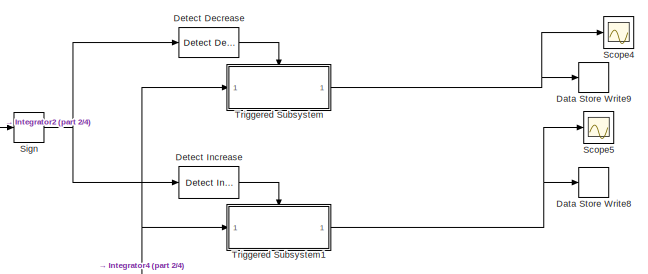
[diagram: root canvas - part 1/4, top left region]
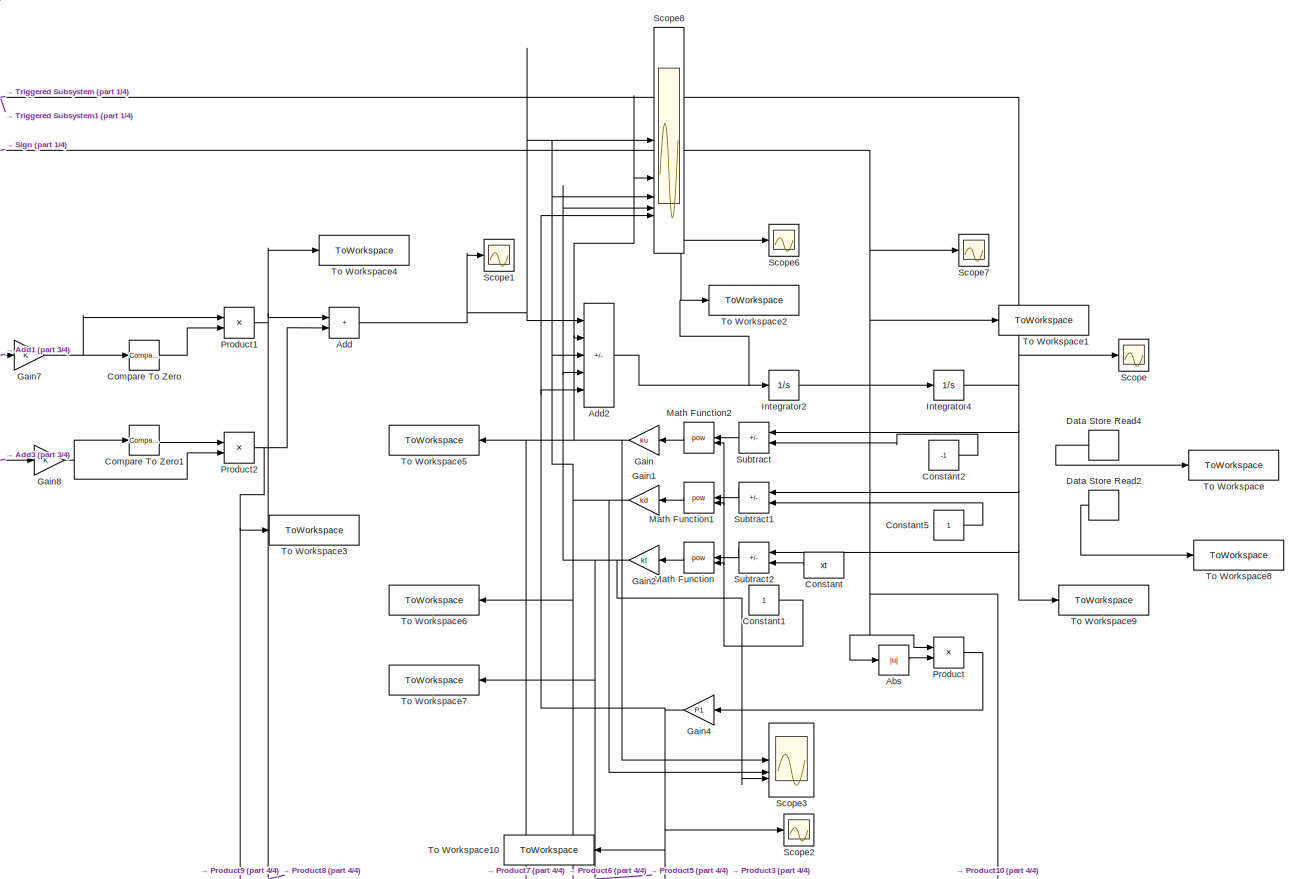
[diagram: root canvas - part 2/4, full width, middle band]
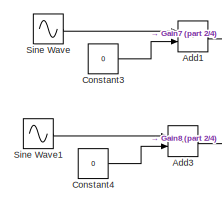
[diagram: root canvas - part 3/4, middle left region]
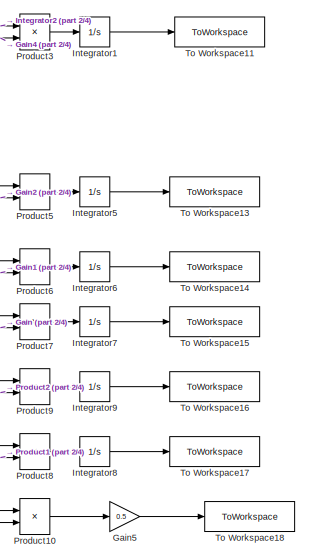
[diagram: root canvas - part 4/4, bottom right region]
MODEL slx_0458fc017199
KIND model
CONFIG AbsTol = auto
CONFIG EnableMultiTasking = off
CONFIG FixedStep = dt
CONFIG MaxStep = auto
CONFIG MinStep = auto
CONFIG RelTol = 1e-3
CONFIG SampleTimeConstraint = Unconstrained
CONFIG SolverName = FixedStepAuto
CONFIG StartTime = 0.0
CONFIG StopTime = 500
BLOCK [Abs] Abs
  SaturateOnIntegerOverflow = off
BLOCK [Sum] Add
  IconShape = rectangular
BLOCK [Sum] Add1
  IconShape = rectangular
BLOCK [Sum] Add2
  IconShape = rectangular
  Inputs = +----
BLOCK [Sum] Add3
  IconShape = rectangular
BLOCK [Reference] Compare To Zero  REF=simulink/Logic and Bit
Operations/Compare
To Zero
  SourceBlock = simulink/Logic and Bit\nOperations/Compare\nTo Zero
  SourceType = Compare To Zero
BLOCK [Reference] Compare To Zero1  REF=simulink/Logic and Bit
Operations/Compare
To Zero
  SourceBlock = simulink/Logic and Bit\nOperations/Compare\nTo Zero
  SourceType = Compare To Zero
BLOCK [Constant] Constant
  Value = xt
BLOCK [Constant] Constant1
BLOCK [Constant] Constant2
  Value = -1
BLOCK [Constant] Constant3
  Value = 0
BLOCK [Constant] Constant4
  Value = 0
BLOCK [Constant] Constant5
BLOCK [DataStoreRead] Data Store Read2
  Commented = on
  DataStoreName = xd
  IndexOptions = Index vector (dialog)
  Indices = 1
  OutputSizes = 1
BLOCK [DataStoreRead] Data Store Read4
  Commented = on
  DataStoreName = xu
  IndexOptions = Index vector (dialog)
  Indices = 1
  OutputSizes = 1
BLOCK [DataStoreWrite] Data Store Write8
  Commented = on
  DataStoreName = xu
  IndexOptions = Index vector (dialog)
  Indices = 1
  OutputSizes = 1
BLOCK [DataStoreWrite] Data Store Write9
  Commented = on
  DataStoreName = xd
  IndexOptions = Index vector (dialog)
  Indices = 1
  OutputSizes = 1
BLOCK [Reference] Detect Decrease  REF=simulink/Logic and Bit
Operations/Detect
Decrease
  Commented = on
  SourceBlock = simulink/Logic and Bit\nOperations/Detect\nDecrease
  SourceType = Detect Decrease
BLOCK [Reference] Detect Increase  REF=simulink/Logic and Bit
Operations/Detect
Increase
  Commented = on
  SourceBlock = simulink/Logic and Bit\nOperations/Detect\nIncrease
  SourceType = Detect Increase
BLOCK [Gain] Gain
  Gain = ku
BLOCK [Gain] Gain1
  Gain = kd
BLOCK [Gain] Gain2
  Gain = kt
BLOCK [Gain] Gain4
  Gain = P1
BLOCK [Gain] Gain5
  Gain = 0.5
BLOCK [Gain] Gain7
BLOCK [Gain] Gain8
BLOCK [Integrator] Integrator1
BLOCK [Integrator] Integrator2
  InitialCondition = 10
BLOCK [Integrator] Integrator4
  InitialCondition = 1
BLOCK [Integrator] Integrator5
BLOCK [Integrator] Integrator6
BLOCK [Integrator] Integrator7
BLOCK [Integrator] Integrator8
BLOCK [Integrator] Integrator9
BLOCK [Math] Math Function
  Operator = pow
BLOCK [Math] Math Function1
  Operator = pow
BLOCK [Math] Math Function2
  Operator = pow
BLOCK [Product] Product
BLOCK [Product] Product1
BLOCK [Product] Product10
BLOCK [Product] Product2
BLOCK [Product] Product3
BLOCK [Product] Product5
BLOCK [Product] Product6
BLOCK [Product] Product7
BLOCK [Product] Product8
BLOCK [Product] Product9
BLOCK [Scope] Scope
  Floating = off
  NumInputPorts = 1
  ScopeSpecificationString = Simulink.scopes.TimeScopeBlockCfg('CurrentConfiguration', extmgr.ConfigurationSet(extmgr.Configuration('Core','General UI',true),extmgr.Configuration('Core','Source UI',true),extmgr.Configuration('Sources','WiredSimulink',true,'DataLoggingVariableName','ScopeData1'),extmgr.Configuration('Visuals','Time Domain',true,'SerializedDisplays',{struct('MinYLimReal','-1.61059','MaxYLimReal','2.15662','YLab...<+1459ch>
BLOCK [Scope] Scope1
  Floating = off
  NumInputPorts = 1
  ScopeSpecificationString = Simulink.scopes.TimeScopeBlockCfg('CurrentConfiguration', extmgr.ConfigurationSet(extmgr.Configuration('Core','General UI',true),extmgr.Configuration('Core','Source UI',true),extmgr.Configuration('Sources','WiredSimulink',true,'DataLoggingVariableName','ScopeData4'),extmgr.Configuration('Visuals','Time Domain',true,'SerializedDisplays',{struct('MinYLimReal','-2.35','MaxYLimReal','2.35','YLabelReal...<+1369ch>
BLOCK [Scope] Scope2
  Floating = off
  NumInputPorts = 1
  ScopeSpecificationString = Simulink.scopes.TimeScopeBlockCfg('CurrentConfiguration', extmgr.ConfigurationSet(extmgr.Configuration('Core','General UI',true),extmgr.Configuration('Core','Source UI',true),extmgr.Configuration('Sources','WiredSimulink',true,'DataLoggingVariableName','ScopeData1'),extmgr.Configuration('Visuals','Time Domain',true,'SerializedDisplays',{struct('MinYLimReal','-9.91729','MaxYLimReal','71.10192','YLa...<+1393ch>
BLOCK [Scope] Scope3
  Floating = off
  NumInputPorts = 3
  ScopeSpecificationString = Simulink.scopes.TimeScopeBlockCfg('CurrentConfiguration', extmgr.ConfigurationSet(extmgr.Configuration('Core','General UI',true),extmgr.Configuration('Core','Source UI',true),extmgr.Configuration('Sources','WiredSimulink',true,'DataLoggingVariableName','ScopeData3'),extmgr.Configuration('Visuals','Time Domain',true,'SerializedDisplays',{struct('MinYLimReal','-1.23332','MaxYLimReal','1.23332','YLab...<+1431ch>
BLOCK [Scope] Scope4
  Floating = off
  NumInputPorts = 1
  ScopeSpecificationString = Simulink.scopes.TimeScopeBlockCfg('CurrentConfiguration', extmgr.ConfigurationSet(extmgr.Configuration('Core','General UI',true),extmgr.Configuration('Core','Source UI',true),extmgr.Configuration('Sources','WiredSimulink',true,'DataLoggingVariableName','ScopeData3'),extmgr.Configuration('Visuals','Time Domain',true,'SerializedDisplays',{struct('MinYLimReal','-0.22249','MaxYLimReal','2.00238','YLab...<+1521ch>
BLOCK [Scope] Scope5
  Floating = off
  NumInputPorts = 1
  ScopeSpecificationString = Simulink.scopes.TimeScopeBlockCfg('CurrentConfiguration', extmgr.ConfigurationSet(extmgr.Configuration('Core','General UI',true),extmgr.Configuration('Core','Source UI',true),extmgr.Configuration('Sources','WiredSimulink',true,'DataLoggingVariableName','ScopeData2'),extmgr.Configuration('Visuals','Time Domain',true,'SerializedDisplays',{struct('MinYLimReal','-1.05699','MaxYLimReal','0.11744','YLab...<+1433ch>
BLOCK [Scope] Scope6
  Floating = off
  NumInputPorts = 1
  ScopeSpecificationString = Simulink.scopes.TimeScopeBlockCfg('CurrentConfiguration', extmgr.ConfigurationSet(extmgr.Configuration('Core','General UI',true),extmgr.Configuration('Core','Source UI',true),extmgr.Configuration('Sources','WiredSimulink',true,'DataLoggingVariableName','ScopeData2'),extmgr.Configuration('Visuals','Time Domain',true,'SerializedDisplays',{struct('MinYLimReal','-5.09533','MaxYLimReal','5.1277','YLabe...<+1519ch>
BLOCK [Scope] Scope7
  Floating = off
  NumInputPorts = 1
  ScopeSpecificationString = Simulink.scopes.TimeScopeBlockCfg('CurrentConfiguration', extmgr.ConfigurationSet(extmgr.Configuration('Core','General UI',true),extmgr.Configuration('Core','Source UI',true),extmgr.Configuration('Sources','WiredSimulink',true,'DataLoggingVariableName','ScopeData1'),extmgr.Configuration('Visuals','Time Domain',true,'SerializedDisplays',{struct('MinYLimReal','-1.17693','MaxYLimReal','2.46395','YLab...<+1530ch>
BLOCK [Scope] Scope8
  Floating = off
  NumInputPorts = 5
  ScopeSpecificationString = Simulink.scopes.TimeScopeBlockCfg('CurrentConfiguration', extmgr.ConfigurationSet(extmgr.Configuration('Core','General UI',true),extmgr.Configuration('Core','Source UI',true),extmgr.Configuration('Sources','WiredSimulink',true,'DataLoggingVariableName','ScopeData2'),extmgr.Configuration('Visuals','Time Domain',true,'SerializedDisplays',{struct('MinYLimReal','-1.33754','MaxYLimReal','1.39845','YLab...<+1668ch>
BLOCK [Signum] Sign
  Commented = on
BLOCK [Sin] Sine Wave
  Amplitude = P2
  Frequency = P3
  SampleTime = 0
BLOCK [Sin] Sine Wave1
  Amplitude = P2
  Frequency = P3
  SampleTime = 0
BLOCK [Sum] Subtract
  IconShape = rectangular
  Inputs = +-
BLOCK [Sum] Subtract1
  IconShape = rectangular
  Inputs = +-
BLOCK [Sum] Subtract2
  IconShape = rectangular
  Inputs = +-
BLOCK [ToWorkspace] To Workspace
  Commented = on
  FixptAsFi = on
  MaxDataPoints = inf
  SampleTime = -1
  SaveFormat = Timeseries
  VariableName = min_xu
BLOCK [ToWorkspace] To Workspace1
  FixptAsFi = on
  MaxDataPoints = inf
  SampleTime = -1
  SaveFormat = Timeseries
  VariableName = velocity
BLOCK [ToWorkspace] To Workspace10
  FixptAsFi = on
  MaxDataPoints = inf
  SampleTime = -1
  SaveFormat = Timeseries
  VariableName = dampforce_aero
BLOCK [ToWorkspace] To Workspace11
  FixptAsFi = on
  MaxDataPoints = inf
  SampleTime = -1
  SaveFormat = Timeseries
  VariableName = aerowork
BLOCK [ToWorkspace] To Workspace13
  FixptAsFi = on
  MaxDataPoints = inf
  SampleTime = -1
  SaveFormat = Timeseries
  VariableName = tspringwork
BLOCK [ToWorkspace] To Workspace14
  FixptAsFi = on
  MaxDataPoints = inf
  SampleTime = -1
  SaveFormat = Timeseries
  VariableName = dspringwork
BLOCK [ToWorkspace] To Workspace15
  FixptAsFi = on
  MaxDataPoints = inf
  SampleTime = -1
  SaveFormat = Timeseries
  VariableName = uspringwork
BLOCK [ToWorkspace] To Workspace16
  FixptAsFi = on
  MaxDataPoints = inf
  SampleTime = -1
  SaveFormat = Timeseries
  VariableName = posforcework
BLOCK [ToWorkspace] To Workspace17
  FixptAsFi = on
  MaxDataPoints = inf
  SampleTime = -1
  SaveFormat = Timeseries
  VariableName = negforcework
BLOCK [ToWorkspace] To Workspace18
  FixptAsFi = on
  MaxDataPoints = inf
  SampleTime = -1
  SaveFormat = Timeseries
  VariableName = inertiaenergy
BLOCK [ToWorkspace] To Workspace2
  FixptAsFi = on
  MaxDataPoints = inf
  SampleTime = -1
  SaveFormat = Timeseries
  VariableName = accel
BLOCK [ToWorkspace] To Workspace3
  FixptAsFi = on
  MaxDataPoints = inf
  SampleTime = -1
  SaveFormat = Timeseries
  VariableName = posforce
BLOCK [ToWorkspace] To Workspace4
  FixptAsFi = on
  MaxDataPoints = inf
  SampleTime = -1
  SaveFormat = Timeseries
  VariableName = negforce
BLOCK [ToWorkspace] To Workspace5
  FixptAsFi = on
  MaxDataPoints = inf
  SampleTime = -1
  SaveFormat = Timeseries
  VariableName = springforce_u
BLOCK [ToWorkspace] To Workspace6
  FixptAsFi = on
  MaxDataPoints = inf
  SampleTime = -1
  SaveFormat = Timeseries
  VariableName = springforce_d
BLOCK [ToWorkspace] To Workspace7
  FixptAsFi = on
  MaxDataPoints = inf
  SampleTime = -1
  SaveFormat = Timeseries
  VariableName = springforce_t
BLOCK [ToWorkspace] To Workspace8
  Commented = on
  FixptAsFi = on
  MaxDataPoints = inf
  SampleTime = -1
  SaveFormat = Timeseries
  VariableName = min_xd
BLOCK [ToWorkspace] To Workspace9
  FixptAsFi = on
  MaxDataPoints = inf
  SampleTime = -1
  SaveFormat = Timeseries
  VariableName = displacement
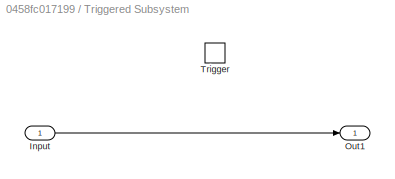
BLOCK [SubSystem] Triggered Subsystem
  Commented = on
  TreatAsAtomicUnit = on
BLOCK [Inport] Triggered Subsystem/Input
BLOCK [Outport] Triggered Subsystem/Out1
BLOCK [TriggerPort] Triggered Subsystem/Trigger
  StatesWhenEnabling = held
  VariantControl = (inherit)
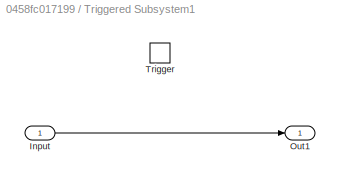
BLOCK [SubSystem] Triggered Subsystem1
  Commented = on
  TreatAsAtomicUnit = on
BLOCK [Inport] Triggered Subsystem1/Input
BLOCK [Outport] Triggered Subsystem1/Out1
BLOCK [TriggerPort] Triggered Subsystem1/Trigger
  StatesWhenEnabling = held
  VariantControl = (inherit)
LINE Abs:1 -> Product:2
LINE Add1:1 -> Gain7:1
NET Add2:1 -> Integrator2:1, Scope6:1, To Workspace2:1
LINE Add3:1 -> Gain8:1
NET Add:1 -> Add2:1, Scope1:1, Scope8:1
LINE Compare To Zero1:1 -> Product2:1
LINE Compare To Zero:1 -> Product1:2
NET Constant1:1 -> Math Function1:2, Math Function2:2, Math Function:2
LINE Constant2:1 -> Subtract:2
LINE Constant3:1 -> Add1:2
LINE Constant4:1 -> Add3:2
LINE Constant5:1 -> Subtract1:2
LINE Constant:1 -> Subtract2:2
LINE Data Store Read2:1 -> To Workspace8:1
LINE Data Store Read4:1 -> To Workspace:1
LINE Detect Decrease:1 -> Triggered Subsystem:trigger
LINE Detect Increase:1 -> Triggered Subsystem1:trigger
NET Gain1:1 -> Add2:3, Product6:2, Scope3:2, Scope8:3, To Workspace6:1
NET Gain2:1 -> Add2:4, Product5:2, Scope3:3, Scope8:4, To Workspace7:1
NET Gain4:1 -> Add2:5, Product3:2, Scope2:1, Scope8:5, To Workspace10:1
LINE Gain5:1 -> To Workspace18:1
NET Gain7:1 -> Compare To Zero:1, Product1:1
NET Gain8:1 -> Compare To Zero1:1, Product2:2
NET Gain:1 -> Add2:2, Product7:2, Scope3:1, Scope8:2, To Workspace5:1
LINE Integrator1:1 -> To Workspace11:1
NET Integrator2:1 -> Abs:1, Integrator4:1, Product10:1, Product10:2, Product3:1, Product5:1, Product6:1, Product7:1, Product8:1, Product9:1, Product:1, Scope7:1, Sign:1, To Workspace1:1
NET Integrator4:1 -> Scope:1, Subtract1:1, Subtract2:1, Subtract:1, To Workspace9:1, Triggered Subsystem1:1, Triggered Subsystem:1
LINE Integrator5:1 -> To Workspace13:1
LINE Integrator6:1 -> To Workspace14:1
LINE Integrator7:1 -> To Workspace15:1
LINE Integrator8:1 -> To Workspace17:1
LINE Integrator9:1 -> To Workspace16:1
LINE Math Function1:1 -> Gain1:1
LINE Math Function2:1 -> Gain:1
LINE Math Function:1 -> Gain2:1
LINE Product10:1 -> Gain5:1
NET Product1:1 -> Add:1, Product8:2, To Workspace4:1
NET Product2:1 -> Add:2, Product9:2, To Workspace3:1
LINE Product3:1 -> Integrator1:1
LINE Product5:1 -> Integrator5:1
LINE Product6:1 -> Integrator6:1
LINE Product7:1 -> Integrator7:1
LINE Product8:1 -> Integrator8:1
LINE Product9:1 -> Integrator9:1
LINE Product:1 -> Gain4:1
NET Sign:1 -> Detect Decrease:1, Detect Increase:1
LINE Sine Wave1:1 -> Add3:1
LINE Sine Wave:1 -> Add1:1
LINE Subtract1:1 -> Math Function1:1
LINE Subtract2:1 -> Math Function:1
LINE Subtract:1 -> Math Function2:1
LINE Triggered Subsystem/Input:1 -> Triggered Subsystem/Out1:1
LINE Triggered Subsystem1/Input:1 -> Triggered Subsystem1/Out1:1
NET Triggered Subsystem1:1 -> Data Store Write8:1, Scope5:1
NET Triggered Subsystem:1 -> Data Store Write9:1, Scope4:1
note: NET lines group one-source signal fan-out (src -> all destinations, sorted); 1:1 wires keep LINE
